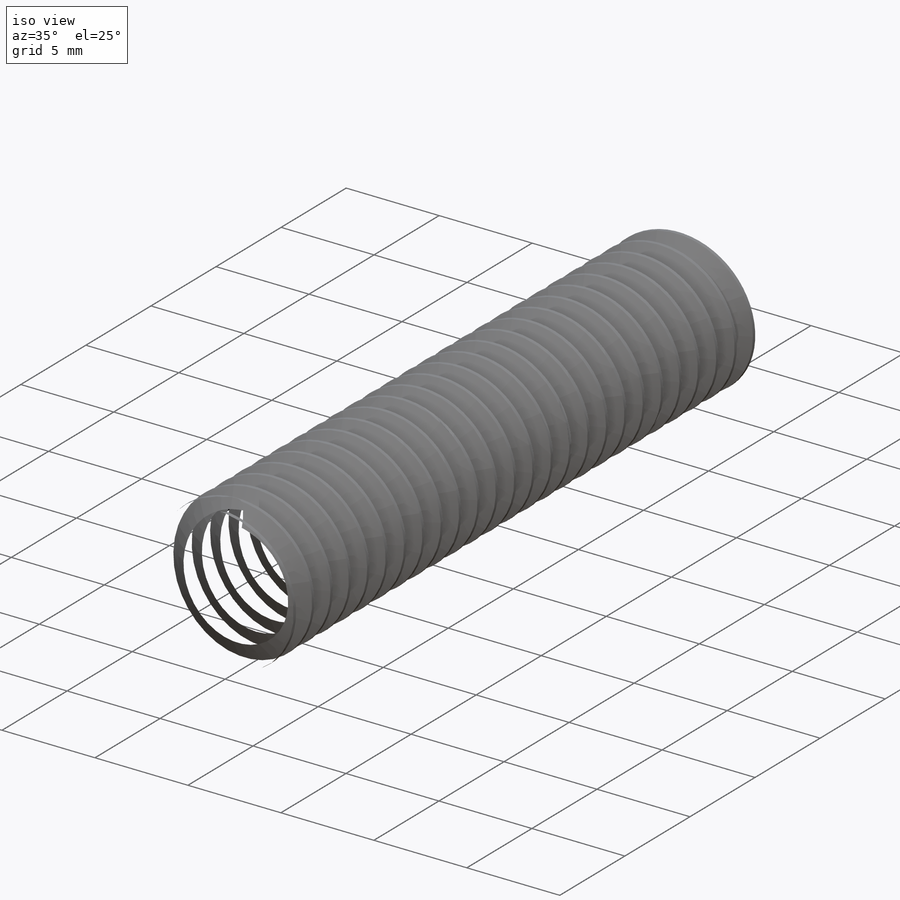
[diagram: iso view]
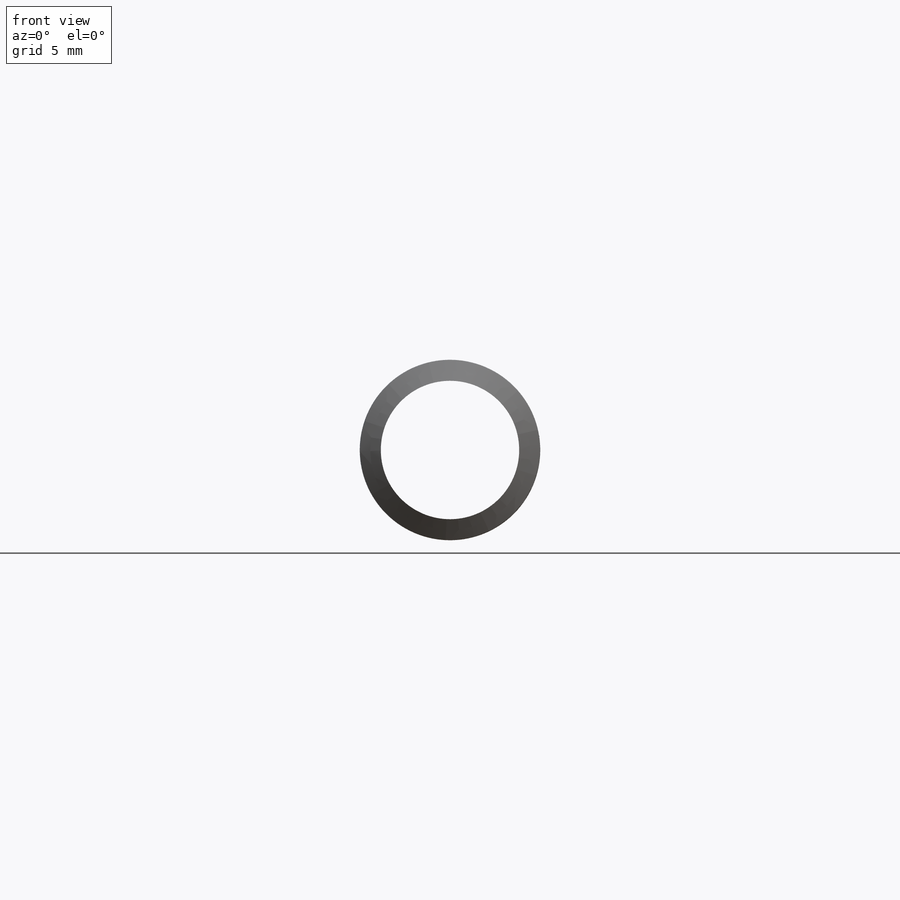
[diagram: front view]
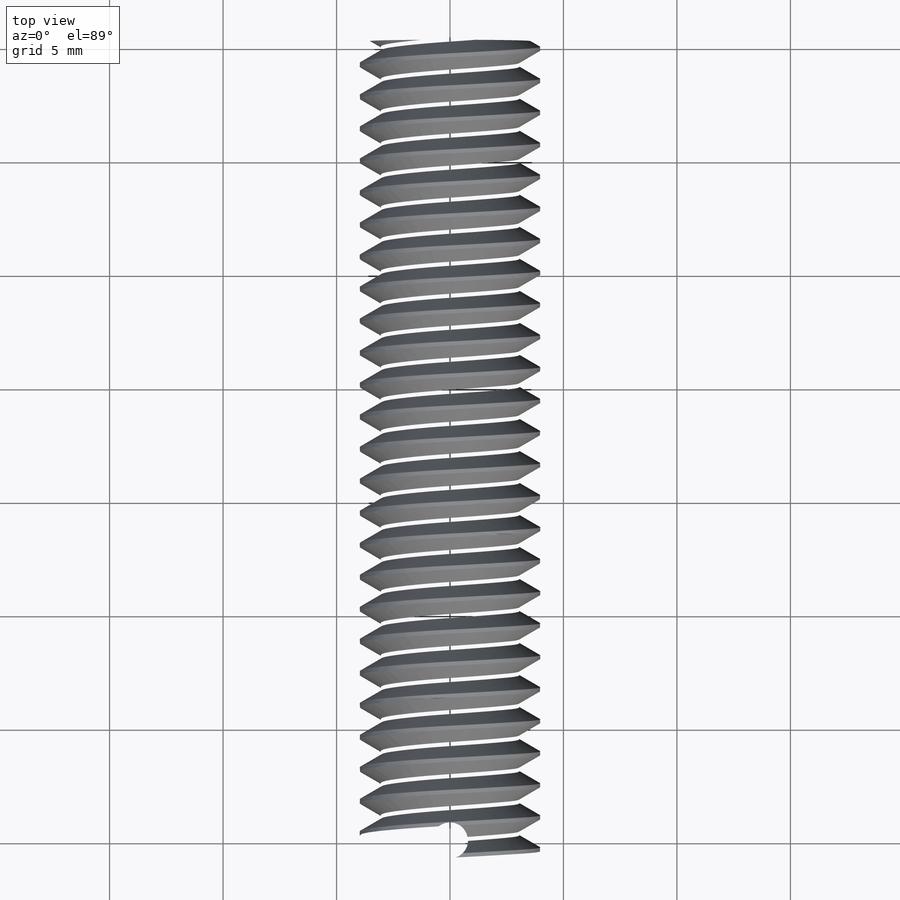
[diagram: top view]
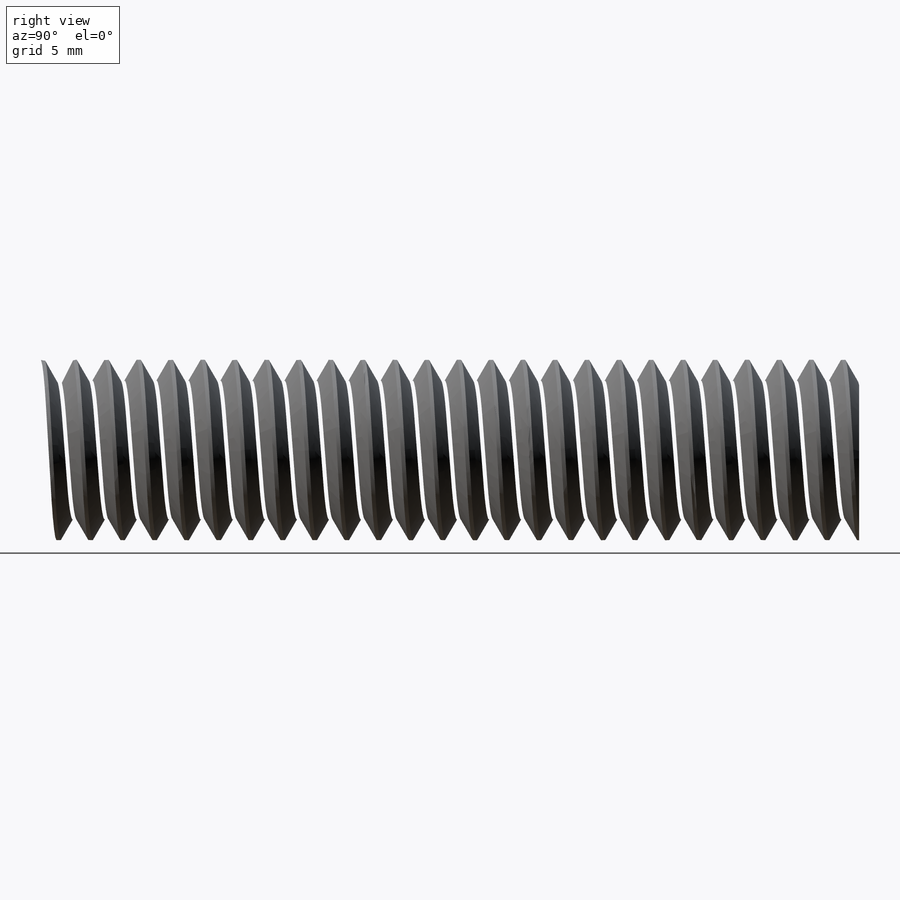
[diagram: right view]
SOLIDWORKS PART (.sldprt)
format: sldprt  version: not decoded by parser v0  size: 1,248,256 bytes
history: native  units: mm
features: sketch x10, cut_revolve x4, extrude x2, material x1, helix x1, sweep x1, revolve x1, cut_extrude x1 (+14 scaffold rows collapsed)
feature tree (35):
  scaffold x14  (default folders/planes/origin — collapsed)
  material  "AISI 304"
  sketch  "Sketch1"  dims[OD=7.9502mm]
  extrude  "Extrude1"  Depth=50.8mm screw length=50.8mm
  sketch  "Sketch2"
  helix  "Helix/Spiral1"  Pitch=52.211111mm pitch=1.411111mm
  sketch  "Sketch3"  dims[c1.D1=~0.176389mm c1.D2=~0.705556mm c1.D3=~1.069256mm c2.D3=60.0deg]
  sweep  "Cut-Sweep1"
  sketch  "Sketch4"  dims[c1.D1=~3.187432mm c2.D1=55.0deg c2.D2=0.254mm]
  cut_revolve  "Cut-Revolve1"  Angle=360deg
  sketch  "Sketch5"  dims[c1.Thread min=87.3125mm c1.D2=0.635mm c1.D3=0.3302mm c1.D1=0.3302mm c2.D2=0.127mm c2.D3=1.0541mm c3.D3=20.0deg]
  revolve  "partially thread"  Angle=360deg
  sketch  "Sketch6"  dims[head dia=~11.90625mm D1=12.7mm]
  extrude  "Extrude2"  Depth=5.159375mm head depth=5.159375mm
  sketch  "Sketch8"  dims[c1.D1=0.127mm c1.D2=~2.809353mm c2.D2=30.0deg c2.D3=12.319mm]
  cut_revolve  "Cut-Revolve2"  Angle=360deg
  sketch  "Sketch9"  dims[c1.D1=~1.514758mm c2.D1=66.0deg c2.D2=4.7625mm c2.D3=3.175mm c2.D4=4.0mm c2.D5=0.4mm c2.D6=1.5mm c2.D7=0.5mm c2.D8=15.0mm c2.D9=1.5mm c2.D10=1.5mm]
  cut_revolve  "Cut-Revolve3"  Angle=360deg
  sketch  "Sketch10"  dims[D1=1.5875mm D2=5.0mm]
  cut_extrude  "Cut-Extrude1"  [1 undecoded]
  sketch  "Sketch11"  dims[D1=4.5mm D2=5.7mm D3=12.0mm D4=6.0mm]
  cut_revolve  "Cut-Revolve4"  Angle=360deg
decode coverage: 17 of 20 modeling features carry decoded parameters
note: ~ marks probable driven/reference dimensions
note: 1 parameter value undecoded
note: suppression state not decoded; provenance and decode notes live in map.json
